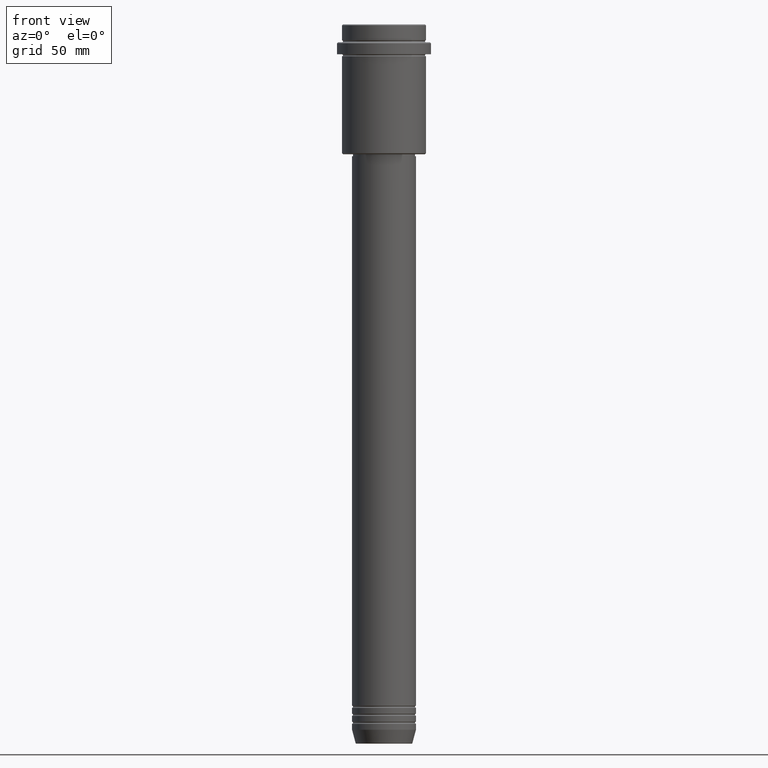
[diagram: clean part render]
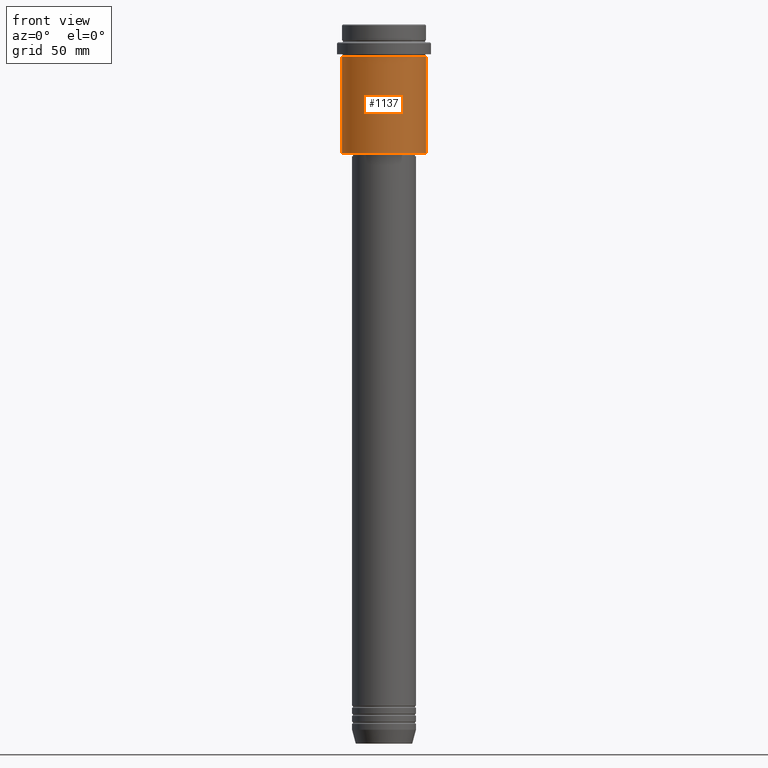
[diagram: same view with one face highlighted and labeled with its STEP entity id]
A machine part, front view. The second image highlights one B-rep face of the part: STEP entity #1137.
In plain terms, the highlighted cylindrical surface (partial cylindrical patch) has radius 21 mm, axis along (-0, -0, 1).
Its self-contained STEP definition (entity closure, byte-faithful):
#55 = CARTESIAN_POINT ( 'NONE',  ( 0.000000000000000000, 0.000000000000000000, 0.000000000000000000 ) ) ;
#104 = LINE ( 'NONE', #425, #523 ) ;
#125 = VERTEX_POINT ( 'NONE', #832 ) ;
#135 = ORIENTED_EDGE ( 'NONE', *, *, #1008, .F. ) ;
#161 = VERTEX_POINT ( 'NONE', #1232 ) ;
#208 = CARTESIAN_POINT ( 'NONE',  ( -21.00000000000000000, 2.571758278209441661E-15, -16.00000000000000355 ) ) ;
#211 = EDGE_CURVE ( 'NONE', #646, #1368, #714, .T. ) ;
#259 = DIRECTION ( 'NONE',  ( -0.000000000000000000, -0.000000000000000000, 1.000000000000000000 ) ) ;
#339 = VECTOR ( 'NONE', #464, 1000.000000000000000 ) ;
#342 = AXIS2_PLACEMENT_3D ( 'NONE', #1009, #807, #1343 ) ;
#367 = CARTESIAN_POINT ( 'NONE',  ( -21.00000000000000000, 2.571758278209441661E-15, 0.000000000000000000 ) ) ;
#380 = CARTESIAN_POINT ( 'NONE',  ( 0.000000000000000000, 0.000000000000000000, -16.00000000000000355 ) ) ;
#422 = CIRCLE ( 'NONE', #1267, 21.00000000000000000 ) ;
#423 = EDGE_LOOP ( 'NONE', ( #561, #854, #697, #135 ) ) ;
#425 = CARTESIAN_POINT ( 'NONE',  ( 21.00000000000000000, 0.000000000000000000, 0.000000000000000000 ) ) ;
#439 = DIRECTION ( 'NONE',  ( -0.000000000000000000, -0.000000000000000000, 1.000000000000000000 ) ) ;
#464 = DIRECTION ( 'NONE',  ( -0.000000000000000000, -0.000000000000000000, 1.000000000000000000 ) ) ;
#480 = DIRECTION ( 'NONE',  ( 1.000000000000000000, 0.000000000000000000, 0.000000000000000000 ) ) ;
#523 = VECTOR ( 'NONE', #439, 1000.000000000000000 ) ;
#561 = ORIENTED_EDGE ( 'NONE', *, *, #211, .F. ) ;
#622 = DIRECTION ( 'NONE',  ( 1.000000000000000000, 0.000000000000000000, 0.000000000000000000 ) ) ;
#631 = CYLINDRICAL_SURFACE ( 'NONE', #1130, 21.00000000000000000 ) ;
#646 = VERTEX_POINT ( 'NONE', #1249 ) ;
#697 = ORIENTED_EDGE ( 'NONE', *, *, #1234, .T. ) ;
#714 = LINE ( 'NONE', #367, #339 ) ;
#807 = DIRECTION ( 'NONE',  ( -0.000000000000000000, -0.000000000000000000, 1.000000000000000000 ) ) ;
#832 = CARTESIAN_POINT ( 'NONE',  ( 21.00000000000000000, 0.000000000000000000, -16.00000000000000355 ) ) ;
#834 = DIRECTION ( 'NONE',  ( -0.000000000000000000, -0.000000000000000000, 1.000000000000000000 ) ) ;
#854 = ORIENTED_EDGE ( 'NONE', *, *, #1007, .T. ) ;
#944 = FACE_OUTER_BOUND ( 'NONE', #423, .T. ) ;
#1007 = EDGE_CURVE ( 'NONE', #646, #161, #1057, .T. ) ;
#1008 = EDGE_CURVE ( 'NONE', #1368, #125, #422, .T. ) ;
#1009 = CARTESIAN_POINT ( 'NONE',  ( 0.000000000000000000, 0.000000000000000000, -64.50000000000000000 ) ) ;
#1057 = CIRCLE ( 'NONE', #342, 21.00000000000000000 ) ;
#1130 = AXIS2_PLACEMENT_3D ( 'NONE', #55, #834, #622 ) ;
#1137 = ADVANCED_FACE ( 'NONE', ( #944 ), #631, .T. ) ;
#1232 = CARTESIAN_POINT ( 'NONE',  ( 21.00000000000000000, 0.000000000000000000, -64.50000000000000000 ) ) ;
#1234 = EDGE_CURVE ( 'NONE', #161, #125, #104, .T. ) ;
#1249 = CARTESIAN_POINT ( 'NONE',  ( -21.00000000000000000, 2.571758278209441661E-15, -64.50000000000000000 ) ) ;
#1267 = AXIS2_PLACEMENT_3D ( 'NONE', #380, #259, #480 ) ;
#1343 = DIRECTION ( 'NONE',  ( -1.000000000000000000, 0.000000000000000000, 0.000000000000000000 ) ) ;
#1368 = VERTEX_POINT ( 'NONE', #208 ) ;